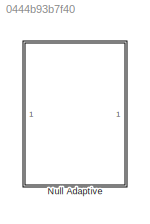
MODEL slx_0444b93b7f40
KIND library
CONFIG AbsTol = auto
CONFIG EnableMultiTasking = off
CONFIG FixedStep = auto
CONFIG MaxStep = auto
CONFIG MinStep = auto
CONFIG RelTol = 1e-3
CONFIG SampleTimeConstraint = Unconstrained
CONFIG SolverName = VariableStepAuto
CONFIG StartTime = 0.0
CONFIG StopTime = 10.0
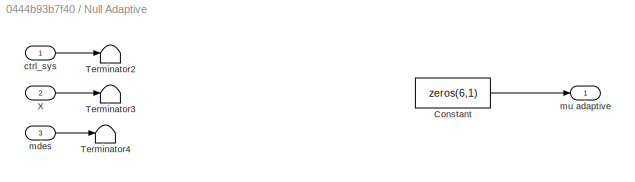
BLOCK [SubSystem] Null Adaptive
BLOCK [Constant] Null Adaptive/Constant
  Value = zeros(6,1)
BLOCK [Terminator] Null Adaptive/Terminator2
BLOCK [Terminator] Null Adaptive/Terminator3
BLOCK [Terminator] Null Adaptive/Terminator4
BLOCK [Inport] Null Adaptive/X
  Port = 2
BLOCK [Inport] Null Adaptive/ctrl_sys
BLOCK [Inport] Null Adaptive/mdes
  Port = 3
BLOCK [Outport] Null Adaptive/mu adaptive
LINE Null Adaptive/Constant:1 -> Null Adaptive/mu adaptive:1
LINE Null Adaptive/X:1 -> Null Adaptive/Terminator3:1
LINE Null Adaptive/ctrl_sys:1 -> Null Adaptive/Terminator2:1
LINE Null Adaptive/mdes:1 -> Null Adaptive/Terminator4:1
